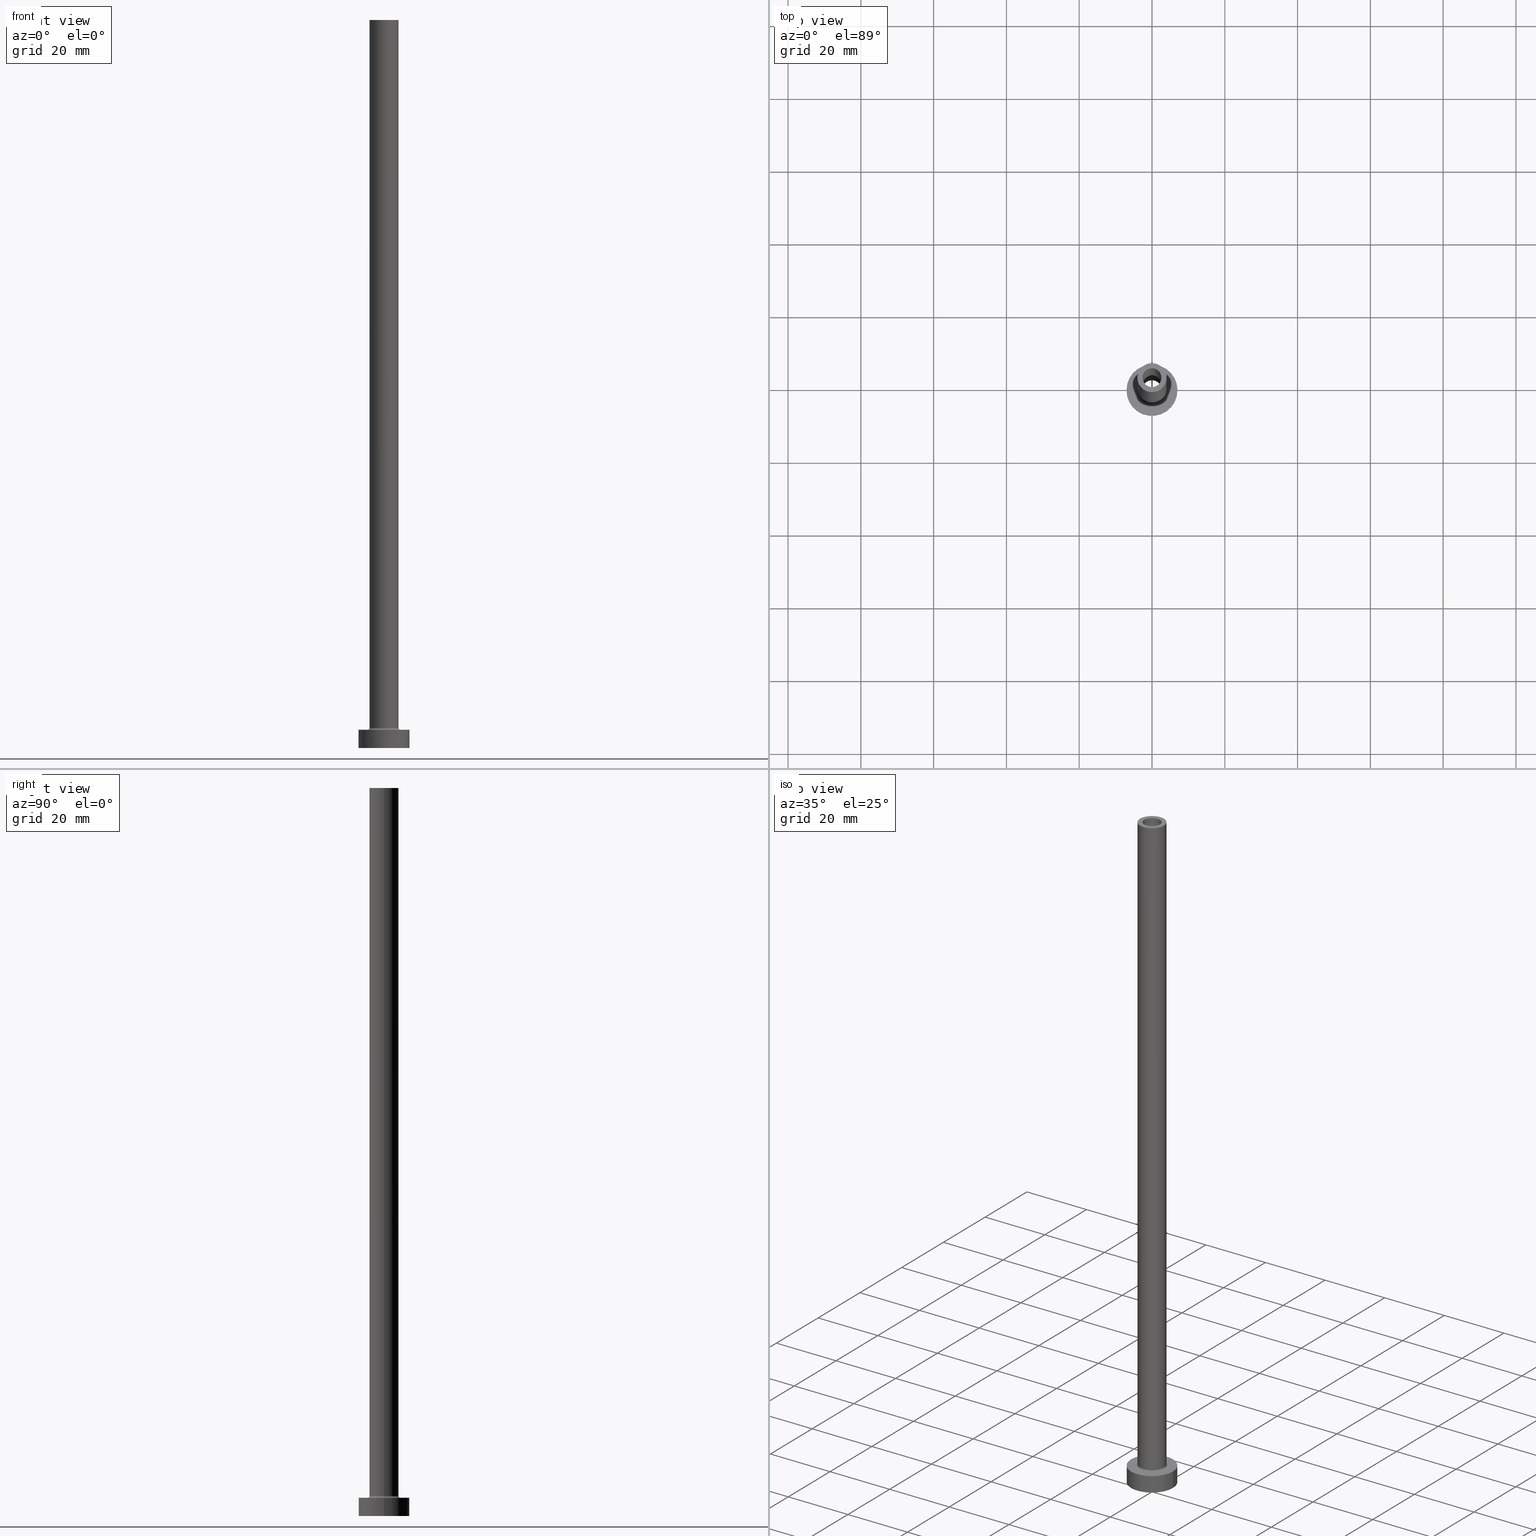
[diagram: canonical four-view strip — front | top / right | iso, engineering-drawing reading convention]
A machine part, canonical four-view strip (front | top / right | iso — engineering-drawing reading convention). The complete STEP part file that produces these views, byte-faithful:
ISO-10303-21;
HEADER;
FILE_DESCRIPTION (( 'STEP AP203' ),
    '1' );
FILE_NAME ('46c4.STEP',
    '2023-02-13T10:11:08',
    ( '' ),
    ( '' ),
    'SwSTEP 2.0',
    'SolidWorks 2019',
    '' );
FILE_SCHEMA (( 'CONFIG_CONTROL_DESIGN' ));
ENDSEC;

DATA;
#1 = DIRECTION ( 'NONE',  ( 1.000000000000000000, 0.000000000000000000, 0.000000000000000000 ) ) ;
#2 = CARTESIAN_POINT ( 'NONE',  ( -2.600000000000000089, 0.000000000000000000, 200.0000000000000000 ) ) ;
#3 = ADVANCED_FACE ( 'NONE', ( #13 ), #301, .T. ) ;
#4 = CARTESIAN_POINT ( 'NONE',  ( -4.500000000000000888, 5.510910596163088569E-16, 5.000000000000002665 ) ) ;
#5 = DIRECTION ( 'NONE',  ( 1.000000000000000000, 0.000000000000000000, 0.000000000000000000 ) ) ;
#6 = ORIENTED_EDGE ( 'NONE', *, *, #277, .F. ) ;
#7 = DIRECTION ( 'NONE',  ( -1.000000000000000000, 0.000000000000000000, 0.000000000000000000 ) ) ;
#8 = AXIS2_PLACEMENT_3D ( 'NONE', #118, #400, #216 ) ;
#9 = DIRECTION ( 'NONE',  ( -0.000000000000000000, -0.000000000000000000, -1.000000000000000000 ) ) ;
#10 = ORIENTED_EDGE ( 'NONE', *, *, #273, .F. ) ;
#11 = DATE_AND_TIME ( #384, #344 ) ;
#12 = DIRECTION ( 'NONE',  ( 1.224646799147353207E-16, 1.000000000000000000, -0.000000000000000000 ) ) ;
#13 = FACE_OUTER_BOUND ( 'NONE', #336, .T. ) ;
#14 = EDGE_CURVE ( 'NONE', #433, #186, #169, .T. ) ;
#15 = COORDINATED_UNIVERSAL_TIME_OFFSET ( 1, 0, .AHEAD. ) ;
#16 = APPLICATION_CONTEXT ( 'configuration controlled 3d designs of mechanical parts and assemblies' ) ;
#17 = CIRCLE ( 'NONE', #269, 4.000000000000000000 ) ;
#18 = CIRCLE ( 'NONE', #214, 4.500000000000000888 ) ;
#19 = VERTEX_POINT ( 'NONE', #198 ) ;
#20 = CIRCLE ( 'NONE', #280, 2.750000000000000000 ) ;
#21 = PERSON_AND_ORGANIZATION_ROLE ( 'creator' ) ;
#22 = ORIENTED_EDGE ( 'NONE', *, *, #225, .F. ) ;
#23 = SHAPE_DEFINITION_REPRESENTATION ( #105, #161 ) ;
#24 = FACE_OUTER_BOUND ( 'NONE', #123, .T. ) ;
#25 = CARTESIAN_POINT ( 'NONE',  ( 0.000000000000000000, 0.000000000000000000, 200.0000000000000000 ) ) ;
#26 = DIRECTION ( 'NONE',  ( 0.000000000000000000, 0.000000000000000000, 1.000000000000000000 ) ) ;
#27 = EDGE_LOOP ( 'NONE', ( #74, #63, #454, #386 ) ) ;
#28 = AXIS2_PLACEMENT_3D ( 'NONE', #405, #83, #374 ) ;
#29 = DIRECTION ( 'NONE',  ( 0.000000000000000000, 0.000000000000000000, 1.000000000000000000 ) ) ;
#30 =( LENGTH_UNIT ( ) NAMED_UNIT ( * ) SI_UNIT ( .MILLI., .METRE. ) );
#31 = FACE_OUTER_BOUND ( 'NONE', #213, .T. ) ;
#32 = EDGE_CURVE ( 'NONE', #186, #262, #417, .T. ) ;
#33 = DIRECTION ( 'NONE',  ( 0.000000000000000000, 0.000000000000000000, -1.000000000000000000 ) ) ;
#34 = AXIS2_PLACEMENT_3D ( 'NONE', #390, #278, #166 ) ;
#35 =( GEOMETRIC_REPRESENTATION_CONTEXT ( 3 ) GLOBAL_UNCERTAINTY_ASSIGNED_CONTEXT ( ( #136 ) ) GLOBAL_UNIT_ASSIGNED_CONTEXT ( ( #30, #102, #134 ) ) REPRESENTATION_CONTEXT ( 'NONE', 'WORKASPACE' ) );
#36 = CARTESIAN_POINT ( 'NONE',  ( 7.000000000000000000, 8.572527594031473190E-16, 5.000000000000000000 ) ) ;
#37 = ADVANCED_FACE ( 'NONE', ( #94 ), #289, .F. ) ;
#38 = CARTESIAN_POINT ( 'NONE',  ( 2.750000000000000000, 3.367778697655221012E-16, 155.0000000000000284 ) ) ;
#39 = DIRECTION ( 'NONE',  ( -0.000000000000000000, -0.000000000000000000, -1.000000000000000000 ) ) ;
#40 = ORIENTED_EDGE ( 'NONE', *, *, #259, .T. ) ;
#41 = AXIS2_PLACEMENT_3D ( 'NONE', #188, #263, #155 ) ;
#42 = CARTESIAN_POINT ( 'NONE',  ( 0.000000000000000000, 0.000000000000000000, 5.000000000000000000 ) ) ;
#43 = CARTESIAN_POINT ( 'NONE',  ( 0.000000000000000000, 0.000000000000000000, 5.500000000000005329 ) ) ;
#44 = ORIENTED_EDGE ( 'NONE', *, *, #174, .F. ) ;
#45 = EDGE_CURVE ( 'NONE', #211, #91, #352, .T. ) ;
#46 = LINE ( 'NONE', #148, #283 ) ;
#47 = AXIS2_PLACEMENT_3D ( 'NONE', #71, #205, #1 ) ;
#48 = CARTESIAN_POINT ( 'NONE',  ( 0.000000000000000000, 0.000000000000000000, 200.0000000000000000 ) ) ;
#49 = VERTEX_POINT ( 'NONE', #247 ) ;
#50 = PERSON_AND_ORGANIZATION ( #244, #78 ) ;
#51 = CC_DESIGN_PERSON_AND_ORGANIZATION_ASSIGNMENT ( #294, #159, ( #389 ) ) ;
#52 = CARTESIAN_POINT ( 'NONE',  ( -7.000000000000000000, 0.000000000000000000, 0.000000000000000000 ) ) ;
#53 = ORIENTED_EDGE ( 'NONE', *, *, #178, .T. ) ;
#54 = APPROVAL_STATUS ( 'not_yet_approved' ) ;
#55 = AXIS2_PLACEMENT_3D ( 'NONE', #181, #335, #438 ) ;
#56 = DIRECTION ( 'NONE',  ( 0.000000000000000000, 0.000000000000000000, 1.000000000000000000 ) ) ;
#57 = PRODUCT_RELATED_PRODUCT_CATEGORY ( 'detail', '', ( #243 ) ) ;
#58 = COORDINATED_UNIVERSAL_TIME_OFFSET ( 1, 0, .AHEAD. ) ;
#59 = DIRECTION ( 'NONE',  ( -0.000000000000000000, -0.000000000000000000, -1.000000000000000000 ) ) ;
#60 = VECTOR ( 'NONE', #59, 1000.000000000000000 ) ;
#61 = ORIENTED_EDGE ( 'NONE', *, *, #382, .T. ) ;
#62 = PERSON_AND_ORGANIZATION ( #244, #78 ) ;
#63 = ORIENTED_EDGE ( 'NONE', *, *, #174, .T. ) ;
#64 = ADVANCED_FACE ( 'NONE', ( #393 ), #327, .F. ) ;
#65 = DIRECTION ( 'NONE',  ( 0.000000000000000000, 0.000000000000000000, 1.000000000000000000 ) ) ;
#66 = DIRECTION ( 'NONE',  ( 1.000000000000000000, 0.000000000000000000, 0.000000000000000000 ) ) ;
#67 = DIRECTION ( 'NONE',  ( 0.000000000000000000, 0.000000000000000000, 1.000000000000000000 ) ) ;
#68 = DIRECTION ( 'NONE',  ( 0.000000000000000000, 0.000000000000000000, 1.000000000000000000 ) ) ;
#69 = CIRCLE ( 'NONE', #356, 2.600000000000000089 ) ;
#70 = ADVANCED_FACE ( 'NONE', ( #31 ), #282, .F. ) ;
#71 = CARTESIAN_POINT ( 'NONE',  ( 0.000000000000000000, 0.000000000000000000, 0.000000000000000000 ) ) ;
#72 = AXIS2_PLACEMENT_3D ( 'NONE', #359, #168, #208 ) ;
#73 = ADVANCED_FACE ( 'NONE', ( #324 ), #138, .F. ) ;
#74 = ORIENTED_EDGE ( 'NONE', *, *, #317, .T. ) ;
#75 = DIRECTION ( 'NONE',  ( 0.000000000000000000, 0.000000000000000000, 1.000000000000000000 ) ) ;
#76 = EDGE_LOOP ( 'NONE', ( #456, #341 ) ) ;
#77 = CC_DESIGN_APPROVAL ( #314, ( #284 ) ) ;
#78 = ORGANIZATION ( 'NEUR�EN�', 'NEUR�EN�', '' ) ;
#79 = CARTESIAN_POINT ( 'NONE',  ( -2.750000000000000000, 0.000000000000000000, 155.0000000000000284 ) ) ;
#80 = ORIENTED_EDGE ( 'NONE', *, *, #358, .T. ) ;
#81 = CARTESIAN_POINT ( 'NONE',  ( 0.000000000000000000, 0.000000000000000000, 200.0000000000000000 ) ) ;
#82 = VERTEX_POINT ( 'NONE', #36 ) ;
#83 = DIRECTION ( 'NONE',  ( 0.000000000000000000, 0.000000000000000000, 1.000000000000000000 ) ) ;
#84 = EDGE_CURVE ( 'NONE', #375, #49, #427, .T. ) ;
#85 = APPROVAL_ROLE ( '' ) ;
#86 = PLANE ( 'NONE',  #246 ) ;
#87 = PERSON_AND_ORGANIZATION ( #244, #78 ) ;
#88 = DIRECTION ( 'NONE',  ( 1.000000000000000000, 0.000000000000000000, 0.000000000000000000 ) ) ;
#89 = ORIENTED_EDGE ( 'NONE', *, *, #424, .F. ) ;
#90 = AXIS2_PLACEMENT_3D ( 'NONE', #140, #33, #241 ) ;
#91 = VERTEX_POINT ( 'NONE', #151 ) ;
#92 = COORDINATED_UNIVERSAL_TIME_OFFSET ( 1, 0, .AHEAD. ) ;
#93 = DIRECTION ( 'NONE',  ( 0.000000000000000000, 0.000000000000000000, 1.000000000000000000 ) ) ;
#94 = FACE_OUTER_BOUND ( 'NONE', #110, .T. ) ;
#95 = CALENDAR_DATE ( 2023, 13, 2 ) ;
#96 = ORIENTED_EDGE ( 'NONE', *, *, #178, .F. ) ;
#97 = CC_DESIGN_DATE_AND_TIME_ASSIGNMENT ( #11, #154, ( #231 ) ) ;
#98 = DESIGN_CONTEXT ( 'detailed design', #16, 'design' ) ;
#99 = VERTEX_POINT ( 'NONE', #177 ) ;
#100 = CC_DESIGN_PERSON_AND_ORGANIZATION_ASSIGNMENT ( #421, #442, ( #243 ) ) ;
#101 = LOCAL_TIME ( 11, 11, 8.000000000000000000, #265 ) ;
#102 =( NAMED_UNIT ( * ) PLANE_ANGLE_UNIT ( ) SI_UNIT ( $, .RADIAN. ) );
#103 = DIRECTION ( 'NONE',  ( 0.000000000000000000, 0.000000000000000000, -1.000000000000000000 ) ) ;
#104 = CARTESIAN_POINT ( 'NONE',  ( 0.000000000000000000, 0.000000000000000000, 0.000000000000000000 ) ) ;
#105 = PRODUCT_DEFINITION_SHAPE ( 'NONE', 'NONE',  #389 ) ;
#106 = EDGE_CURVE ( 'NONE', #49, #375, #190, .T. ) ;
#107 = EDGE_LOOP ( 'NONE', ( #44, #267, #141, #334 ) ) ;
#108 = EDGE_CURVE ( 'NONE', #272, #375, #46, .T. ) ;
#109 = DIRECTION ( 'NONE',  ( -0.000000000000000000, -0.000000000000000000, -1.000000000000000000 ) ) ;
#110 = EDGE_LOOP ( 'NONE', ( #434, #404, #290, #96 ) ) ;
#111 = AXIS2_PLACEMENT_3D ( 'NONE', #266, #419, #422 ) ;
#112 = LINE ( 'NONE', #370, #184 ) ;
#113 = FACE_OUTER_BOUND ( 'NONE', #131, .T. ) ;
#114 = VERTEX_POINT ( 'NONE', #292 ) ;
#115 = EDGE_CURVE ( 'NONE', #91, #211, #446, .T. ) ;
#116 = VECTOR ( 'NONE', #311, 1000.000000000000000 ) ;
#117 = DATE_TIME_ROLE ( 'creation_date' ) ;
#118 = CARTESIAN_POINT ( 'NONE',  ( 4.500000000000000888, 0.000000000000000000, 5.500000000000005329 ) ) ;
#119 = ORIENTED_EDGE ( 'NONE', *, *, #139, .F. ) ;
#120 = PERSON_AND_ORGANIZATION_ROLE ( 'classification_officer' ) ;
#121 = AXIS2_PLACEMENT_3D ( 'NONE', #261, #26, #351 ) ;
#122 = FACE_OUTER_BOUND ( 'NONE', #439, .T. ) ;
#123 = EDGE_LOOP ( 'NONE', ( #285, #147 ) ) ;
#124 = CARTESIAN_POINT ( 'NONE',  ( 0.000000000000000000, 0.000000000000000000, 162.7781745930520572 ) ) ;
#125 = EDGE_LOOP ( 'NONE', ( #381, #296, #379, #22 ) ) ;
#126 = CALENDAR_DATE ( 2023, 13, 2 ) ;
#127 = PLANE ( 'NONE',  #111 ) ;
#128 = VERTEX_POINT ( 'NONE', #4 ) ;
#129 = FACE_BOUND ( 'NONE', #76, .T. ) ;
#130 = AXIS2_PLACEMENT_3D ( 'NONE', #428, #29, #357 ) ;
#131 = EDGE_LOOP ( 'NONE', ( #217, #415 ) ) ;
#132 = DIRECTION ( 'NONE',  ( 0.000000000000000000, 0.000000000000000000, -1.000000000000000000 ) ) ;
#133 = ORIENTED_EDGE ( 'NONE', *, *, #106, .T. ) ;
#134 =( NAMED_UNIT ( * ) SI_UNIT ( $, .STERADIAN. ) SOLID_ANGLE_UNIT ( ) );
#135 = VECTOR ( 'NONE', #109, 1000.000000000000000 ) ;
#136 = UNCERTAINTY_MEASURE_WITH_UNIT (LENGTH_MEASURE( 1.000000000000000082E-05 ), #30, 'distance_accuracy_value', 'NONE');
#137 = DIRECTION ( 'NONE',  ( 1.000000000000000000, 0.000000000000000000, 0.000000000000000000 ) ) ;
#138 = CYLINDRICAL_SURFACE ( 'NONE', #249, 2.750000000000000000 ) ;
#139 = EDGE_CURVE ( 'NONE', #195, #49, #286, .T. ) ;
#140 = CARTESIAN_POINT ( 'NONE',  ( 0.000000000000000000, 0.000000000000000000, 200.0000000000000000 ) ) ;
#141 = ORIENTED_EDGE ( 'NONE', *, *, #32, .T. ) ;
#142 = AXIS2_PLACEMENT_3D ( 'NONE', #257, #331, #5 ) ;
#143 = APPROVAL_PERSON_ORGANIZATION ( #62, #167, #299 ) ;
#144 = ORIENTED_EDGE ( 'NONE', *, *, #45, .F. ) ;
#145 = EDGE_CURVE ( 'NONE', #375, #412, #173, .T. ) ;
#146 = FACE_OUTER_BOUND ( 'NONE', #165, .T. ) ;
#147 = ORIENTED_EDGE ( 'NONE', *, *, #14, .F. ) ;
#148 = CARTESIAN_POINT ( 'NONE',  ( 4.000000000000000000, 4.898587196589412829E-16, 200.0000000000000000 ) ) ;
#149 = AXIS2_PLACEMENT_3D ( 'NONE', #48, #366, #338 ) ;
#150 = APPROVAL_ROLE ( '' ) ;
#151 = CARTESIAN_POINT ( 'NONE',  ( 2.600000000000000089, 3.184081677783117698E-16, 200.0000000000000000 ) ) ;
#152 = ADVANCED_FACE ( 'NONE', ( #403 ), #250, .T. ) ;
#153 = ORIENTED_EDGE ( 'NONE', *, *, #84, .T. ) ;
#154 = DATE_TIME_ROLE ( 'classification_date' ) ;
#155 = DIRECTION ( 'NONE',  ( 1.000000000000000000, 0.000000000000000000, 0.000000000000000000 ) ) ;
#156 = DIRECTION ( 'NONE',  ( 1.000000000000000000, 0.000000000000000000, 0.000000000000000000 ) ) ;
#157 = PERSON_AND_ORGANIZATION ( #244, #78 ) ;
#158 = ORIENTED_EDGE ( 'NONE', *, *, #45, .T. ) ;
#159 = PERSON_AND_ORGANIZATION_ROLE ( 'creator' ) ;
#160 = FACE_OUTER_BOUND ( 'NONE', #227, .T. ) ;
#161 = ADVANCED_BREP_SHAPE_REPRESENTATION ( '46c4', ( #298, #215 ), #35 ) ;
#162 = ORIENTED_EDGE ( 'NONE', *, *, #291, .T. ) ;
#163 = DIRECTION ( 'NONE',  ( 1.000000000000000000, 0.000000000000000000, 0.000000000000000000 ) ) ;
#164 = CARTESIAN_POINT ( 'NONE',  ( 0.000000000000000000, 0.000000000000000000, 155.0000000000000284 ) ) ;
#165 = EDGE_LOOP ( 'NONE', ( #264, #189, #153, #119 ) ) ;
#166 = DIRECTION ( 'NONE',  ( 1.000000000000000000, 0.000000000000000000, 0.000000000000000000 ) ) ;
#167 = APPROVAL ( #342, 'NEUR�EN�' ) ;
#168 = DIRECTION ( 'NONE',  ( -0.000000000000000000, -0.000000000000000000, -1.000000000000000000 ) ) ;
#169 = CIRCLE ( 'NONE', #398, 2.750000000000000000 ) ;
#170 = DIRECTION ( 'NONE',  ( 0.000000000000000000, 0.000000000000000000, -1.000000000000000000 ) ) ;
#171 = CARTESIAN_POINT ( 'NONE',  ( 0.000000000000000000, 0.000000000000000000, 155.0000000000000284 ) ) ;
#172 = CARTESIAN_POINT ( 'NONE',  ( 0.000000000000000000, 0.000000000000000000, 200.0000000000000000 ) ) ;
#173 = CIRCLE ( 'NONE', #8, 0.5000000000000004441 ) ;
#174 = EDGE_CURVE ( 'NONE', #433, #99, #112, .T. ) ;
#175 = AXIS2_PLACEMENT_3D ( 'NONE', #172, #170, #320 ) ;
#176 = ORIENTED_EDGE ( 'NONE', *, *, #115, .F. ) ;
#177 = CARTESIAN_POINT ( 'NONE',  ( 2.750000000000000000, 3.367778697655221012E-16, 0.000000000000000000 ) ) ;
#178 = EDGE_CURVE ( 'NONE', #128, #412, #18, .T. ) ;
#179 = APPROVAL_PERSON_ORGANIZATION ( #157, #297, #150 ) ;
#180 = DIRECTION ( 'NONE',  ( 1.000000000000000000, 0.000000000000000000, 0.000000000000000000 ) ) ;
#181 = CARTESIAN_POINT ( 'NONE',  ( 0.000000000000000000, 0.000000000000000000, 5.500000000000005329 ) ) ;
#182 = EDGE_LOOP ( 'NONE', ( #144, #176 ) ) ;
#183 = FACE_BOUND ( 'NONE', #182, .T. ) ;
#184 = VECTOR ( 'NONE', #367, 1000.000000000000000 ) ;
#185 = CC_DESIGN_APPROVAL ( #297, ( #389 ) ) ;
#186 = VERTEX_POINT ( 'NONE', #79 ) ;
#187 = DIRECTION ( 'NONE',  ( 0.000000000000000000, 0.000000000000000000, 1.000000000000000000 ) ) ;
#188 = CARTESIAN_POINT ( 'NONE',  ( 0.000000000000000000, 0.000000000000000000, 5.500000000000005329 ) ) ;
#189 = ORIENTED_EDGE ( 'NONE', *, *, #108, .T. ) ;
#190 = CIRCLE ( 'NONE', #55, 4.000000000000000000 ) ;
#191 = CARTESIAN_POINT ( 'NONE',  ( -4.500000000000000888, 5.510910596163089556E-16, 5.500000000000005329 ) ) ;
#192 = DIRECTION ( 'NONE',  ( -1.000000000000000000, 0.000000000000000000, 0.000000000000000000 ) ) ;
#193 = DATE_AND_TIME ( #376, #240 ) ;
#194 = CARTESIAN_POINT ( 'NONE',  ( 0.000000000000000000, 0.000000000000000000, 5.000000000000000000 ) ) ;
#195 = VERTEX_POINT ( 'NONE', #252 ) ;
#196 = DATE_AND_TIME ( #95, #323 ) ;
#197 = CARTESIAN_POINT ( 'NONE',  ( 2.600000000000000089, 3.184081677783117698E-16, 155.0000000000000284 ) ) ;
#198 = CARTESIAN_POINT ( 'NONE',  ( -2.600000000000000089, 0.000000000000000000, 155.0000000000000284 ) ) ;
#199 = CARTESIAN_POINT ( 'NONE',  ( 0.000000000000000000, 0.000000000000000000, 200.0000000000000000 ) ) ;
#200 = ORIENTED_EDGE ( 'NONE', *, *, #332, .F. ) ;
#201 = DIRECTION ( 'NONE',  ( -0.000000000000000000, -0.000000000000000000, -1.000000000000000000 ) ) ;
#202 = CIRCLE ( 'NONE', #329, 0.5000000000000004441 ) ;
#203 = ORIENTED_EDGE ( 'NONE', *, *, #358, .F. ) ;
#204 = APPLICATION_PROTOCOL_DEFINITION ( 'international standard', 'config_control_design', 1994, #416 ) ;
#205 = DIRECTION ( 'NONE',  ( -0.000000000000000000, -0.000000000000000000, -1.000000000000000000 ) ) ;
#206 = CARTESIAN_POINT ( 'NONE',  ( 4.000000000000000000, 4.898587196589412829E-16, 5.500000000000005329 ) ) ;
#207 = CIRCLE ( 'NONE', #47, 2.750000000000000000 ) ;
#208 = DIRECTION ( 'NONE',  ( -1.000000000000000000, 0.000000000000000000, 0.000000000000000000 ) ) ;
#209 = DIRECTION ( 'NONE',  ( 1.000000000000000000, 0.000000000000000000, 0.000000000000000000 ) ) ;
#210 = LINE ( 'NONE', #328, #411 ) ;
#211 = VERTEX_POINT ( 'NONE', #220 ) ;
#212 = CARTESIAN_POINT ( 'NONE',  ( 0.000000000000000000, 0.000000000000000000, 5.000000000000000000 ) ) ;
#213 = EDGE_LOOP ( 'NONE', ( #158, #315, #397, #235 ) ) ;
#214 = AXIS2_PLACEMENT_3D ( 'NONE', #42, #39, #180 ) ;
#215 = AXIS2_PLACEMENT_3D ( 'NONE', #268, #187, #221 ) ;
#216 = DIRECTION ( 'NONE',  ( 0.000000000000000000, 0.000000000000000000, -1.000000000000000000 ) ) ;
#217 = ORIENTED_EDGE ( 'NONE', *, *, #332, .T. ) ;
#218 = DIRECTION ( 'NONE',  ( 1.000000000000000000, 0.000000000000000000, 0.000000000000000000 ) ) ;
#219 = ORIENTED_EDGE ( 'NONE', *, *, #424, .T. ) ;
#220 = CARTESIAN_POINT ( 'NONE',  ( -2.600000000000000089, 0.000000000000000000, 200.0000000000000000 ) ) ;
#221 = DIRECTION ( 'NONE',  ( 1.000000000000000000, 0.000000000000000000, 0.000000000000000000 ) ) ;
#222 = LINE ( 'NONE', #228, #368 ) ;
#223 = ORIENTED_EDGE ( 'NONE', *, *, #259, .F. ) ;
#224 = MECHANICAL_CONTEXT ( 'NONE', #416, 'mechanical' ) ;
#225 = EDGE_CURVE ( 'NONE', #275, #19, #312, .T. ) ;
#226 = FACE_OUTER_BOUND ( 'NONE', #27, .T. ) ;
#227 = EDGE_LOOP ( 'NONE', ( #80, #307 ) ) ;
#228 = CARTESIAN_POINT ( 'NONE',  ( 2.600000000000000089, 3.184081677783117698E-16, 200.0000000000000000 ) ) ;
#229 = CARTESIAN_POINT ( 'NONE',  ( -2.750000000000000000, 0.000000000000000000, 162.7781745930520572 ) ) ;
#230 = CIRCLE ( 'NONE', #34, 4.500000000000000888 ) ;
#231 = SECURITY_CLASSIFICATION ( '', '', #308 ) ;
#232 = CARTESIAN_POINT ( 'NONE',  ( 0.000000000000000000, 0.000000000000000000, 0.000000000000000000 ) ) ;
#233 = ORIENTED_EDGE ( 'NONE', *, *, #273, .T. ) ;
#234 = DIRECTION ( 'NONE',  ( -0.000000000000000000, -0.000000000000000000, -1.000000000000000000 ) ) ;
#235 = ORIENTED_EDGE ( 'NONE', *, *, #408, .F. ) ;
#236 = ADVANCED_FACE ( 'NONE', ( #146 ), #410, .T. ) ;
#237 = CYLINDRICAL_SURFACE ( 'NONE', #72, 4.000000000000000000 ) ;
#238 = DIRECTION ( 'NONE',  ( -0.000000000000000000, -0.000000000000000000, -1.000000000000000000 ) ) ;
#239 = CIRCLE ( 'NONE', #302, 7.000000000000000000 ) ;
#240 = LOCAL_TIME ( 11, 11, 8.000000000000000000, #58 ) ;
#241 = DIRECTION ( 'NONE',  ( -1.000000000000000000, 0.000000000000000000, 0.000000000000000000 ) ) ;
#242 = ADVANCED_FACE ( 'NONE', ( #183, #113 ), #254, .T. ) ;
#243 = PRODUCT ( '46c4', '46c4', '', ( #224 ) ) ;
#244 = PERSON ( 'NEUR�EN�', 'NEUR�EN�', 'NEUR�EN�', ('NEUR�EN�'), ('NEUR�EN�'), ('NEUR�EN�') ) ;
#245 = DIRECTION ( 'NONE',  ( 0.000000000000000000, 0.000000000000000000, 1.000000000000000000 ) ) ;
#246 = AXIS2_PLACEMENT_3D ( 'NONE', #232, #93, #274 ) ;
#247 = CARTESIAN_POINT ( 'NONE',  ( -4.000000000000000000, 0.000000000000000000, 5.500000000000005329 ) ) ;
#248 = ORIENTED_EDGE ( 'NONE', *, *, #108, .F. ) ;
#249 = AXIS2_PLACEMENT_3D ( 'NONE', #281, #103, #363 ) ;
#250 = CYLINDRICAL_SURFACE ( 'NONE', #258, 7.000000000000000000 ) ;
#251 = EDGE_LOOP ( 'NONE', ( #248, #200, #287, #133 ) ) ;
#252 = CARTESIAN_POINT ( 'NONE',  ( -4.000000000000000000, 0.000000000000000000, 200.0000000000000000 ) ) ;
#253 = EDGE_CURVE ( 'NONE', #272, #195, #279, .T. ) ;
#254 = PLANE ( 'NONE',  #28 ) ;
#255 = CLOSED_SHELL ( 'NONE', ( #70, #337, #309, #236, #3, #152, #369, #349, #394, #242, #37, #73, #326, #64 ) ) ;
#256 = CALENDAR_DATE ( 2023, 13, 2 ) ;
#257 = CARTESIAN_POINT ( 'NONE',  ( 0.000000000000000000, 0.000000000000000000, 155.0000000000000284 ) ) ;
#258 = AXIS2_PLACEMENT_3D ( 'NONE', #212, #9, #7 ) ;
#259 = EDGE_CURVE ( 'NONE', #82, #402, #210, .T. ) ;
#260 = APPROVAL_STATUS ( 'not_yet_approved' ) ;
#261 = CARTESIAN_POINT ( 'NONE',  ( 0.000000000000000000, 0.000000000000000000, 155.0000000000000284 ) ) ;
#262 = VERTEX_POINT ( 'NONE', #300 ) ;
#263 = DIRECTION ( 'NONE',  ( 0.000000000000000000, 0.000000000000000000, 1.000000000000000000 ) ) ;
#264 = ORIENTED_EDGE ( 'NONE', *, *, #253, .F. ) ;
#265 = COORDINATED_UNIVERSAL_TIME_OFFSET ( 1, 0, .AHEAD. ) ;
#266 = CARTESIAN_POINT ( 'NONE',  ( 0.000000000000000000, 0.000000000000000000, 5.000000000000000000 ) ) ;
#267 = ORIENTED_EDGE ( 'NONE', *, *, #14, .T. ) ;
#269 = AXIS2_PLACEMENT_3D ( 'NONE', #199, #414, #163 ) ;
#268 = CARTESIAN_POINT ( 'NONE',  ( 0.000000000000000000, 0.000000000000000000, 0.000000000000000000 ) ) ;
#270 = AXIS2_PLACEMENT_3D ( 'NONE', #104, #245, #395 ) ;
#271 = DIRECTION ( 'NONE',  ( 1.000000000000000000, 0.000000000000000000, -0.000000000000000000 ) ) ;
#272 = VERTEX_POINT ( 'NONE', #387 ) ;
#273 = EDGE_CURVE ( 'NONE', #114, #371, #304, .T. ) ;
#274 = DIRECTION ( 'NONE',  ( 1.000000000000000000, 0.000000000000000000, -0.000000000000000000 ) ) ;
#275 = VERTEX_POINT ( 'NONE', #197 ) ;
#276 = ORIENTED_EDGE ( 'NONE', *, *, #441, .F. ) ;
#277 = EDGE_CURVE ( 'NONE', #82, #114, #392, .T. ) ;
#278 = DIRECTION ( 'NONE',  ( -0.000000000000000000, -0.000000000000000000, -1.000000000000000000 ) ) ;
#279 = CIRCLE ( 'NONE', #149, 4.000000000000000000 ) ;
#280 = AXIS2_PLACEMENT_3D ( 'NONE', #316, #201, #137 ) ;
#281 = CARTESIAN_POINT ( 'NONE',  ( 0.000000000000000000, 0.000000000000000000, 162.7781745930520572 ) ) ;
#282 = CYLINDRICAL_SURFACE ( 'NONE', #175, 2.600000000000000089 ) ;
#283 = VECTOR ( 'NONE', #333, 1000.000000000000000 ) ;
#284 = PRODUCT_DEFINITION_FORMATION_WITH_SPECIFIED_SOURCE ( 'LIBOVOLN�', '', #243, .NOT_KNOWN. ) ;
#285 = ORIENTED_EDGE ( 'NONE', *, *, #317, .F. ) ;
#286 = LINE ( 'NONE', #443, #135 ) ;
#287 = ORIENTED_EDGE ( 'NONE', *, *, #139, .T. ) ;
#288 = DIRECTION ( 'NONE',  ( -0.000000000000000000, -0.000000000000000000, -1.000000000000000000 ) ) ;
#289 = TOROIDAL_SURFACE ( 'NONE', #365, 4.500000000000000888, 0.5000000000000000000 ) ;
#290 = ORIENTED_EDGE ( 'NONE', *, *, #145, .T. ) ;
#291 = EDGE_CURVE ( 'NONE', #49, #128, #202, .T. ) ;
#292 = CARTESIAN_POINT ( 'NONE',  ( -7.000000000000000000, 0.000000000000000000, 5.000000000000000000 ) ) ;
#293 = ORIENTED_EDGE ( 'NONE', *, *, #382, .F. ) ;
#294 = PERSON_AND_ORGANIZATION ( #244, #78 ) ;
#295 = CARTESIAN_POINT ( 'NONE',  ( 0.000000000000000000, 0.000000000000000000, 200.0000000000000000 ) ) ;
#296 = ORIENTED_EDGE ( 'NONE', *, *, #115, .T. ) ;
#297 = APPROVAL ( #54, 'NEUR�EN�' ) ;
#298 = MANIFOLD_SOLID_BREP ( 'Odebrat vysunut�m4', #255 ) ;
#299 = APPROVAL_ROLE ( '' ) ;
#300 = CARTESIAN_POINT ( 'NONE',  ( -2.750000000000000000, 0.000000000000000000, 0.000000000000000000 ) ) ;
#301 = CYLINDRICAL_SURFACE ( 'NONE', #318, 7.000000000000000000 ) ;
#302 = AXIS2_PLACEMENT_3D ( 'NONE', #455, #56, #88 ) ;
#303 = CIRCLE ( 'NONE', #130, 7.000000000000000000 ) ;
#304 = LINE ( 'NONE', #445, #60 ) ;
#305 = EDGE_LOOP ( 'NONE', ( #407, #451 ) ) ;
#306 = APPLICATION_PROTOCOL_DEFINITION ( 'international standard', 'config_control_design', 1994, #16 ) ;
#307 = ORIENTED_EDGE ( 'NONE', *, *, #277, .T. ) ;
#308 = SECURITY_CLASSIFICATION_LEVEL ( 'unclassified' ) ;
#309 = ADVANCED_FACE ( 'NONE', ( #122 ), #321, .F. ) ;
#310 = CYLINDRICAL_SURFACE ( 'NONE', #383, 2.750000000000000000 ) ;
#311 = DIRECTION ( 'NONE',  ( 0.000000000000000000, 0.000000000000000000, -1.000000000000000000 ) ) ;
#312 = CIRCLE ( 'NONE', #142, 2.600000000000000089 ) ;
#313 = FACE_BOUND ( 'NONE', #305, .T. ) ;
#314 = APPROVAL ( #260, 'NEUR�EN�' ) ;
#315 = ORIENTED_EDGE ( 'NONE', *, *, #364, .T. ) ;
#316 = CARTESIAN_POINT ( 'NONE',  ( 0.000000000000000000, 0.000000000000000000, 0.000000000000000000 ) ) ;
#317 = EDGE_CURVE ( 'NONE', #186, #433, #437, .T. ) ;
#318 = AXIS2_PLACEMENT_3D ( 'NONE', #447, #238, #192 ) ;
#319 = FACE_OUTER_BOUND ( 'NONE', #251, .T. ) ;
#320 = DIRECTION ( 'NONE',  ( -1.000000000000000000, 0.000000000000000000, 0.000000000000000000 ) ) ;
#321 = TOROIDAL_SURFACE ( 'NONE', #41, 4.500000000000000888, 0.5000000000000000000 ) ;
#322 = DIRECTION ( 'NONE',  ( 1.000000000000000000, 0.000000000000000000, 0.000000000000000000 ) ) ;
#323 = LOCAL_TIME ( 11, 11, 8.000000000000000000, #15 ) ;
#324 = FACE_OUTER_BOUND ( 'NONE', #107, .T. ) ;
#325 = LINE ( 'NONE', #2, #448 ) ;
#326 = ADVANCED_FACE ( 'NONE', ( #129, #24 ), #450, .F. ) ;
#327 = CYLINDRICAL_SURFACE ( 'NONE', #90, 2.600000000000000089 ) ;
#328 = CARTESIAN_POINT ( 'NONE',  ( 7.000000000000000000, 8.572527594031473190E-16, 5.000000000000000000 ) ) ;
#329 = AXIS2_PLACEMENT_3D ( 'NONE', #191, #12, #343 ) ;
#330 = LOCAL_TIME ( 11, 11, 8.000000000000000000, #413 ) ;
#331 = DIRECTION ( 'NONE',  ( 0.000000000000000000, 0.000000000000000000, 1.000000000000000000 ) ) ;
#332 = EDGE_CURVE ( 'NONE', #195, #272, #17, .T. ) ;
#333 = DIRECTION ( 'NONE',  ( -0.000000000000000000, -0.000000000000000000, -1.000000000000000000 ) ) ;
#334 = ORIENTED_EDGE ( 'NONE', *, *, #449, .T. ) ;
#335 = DIRECTION ( 'NONE',  ( 0.000000000000000000, 0.000000000000000000, 1.000000000000000000 ) ) ;
#336 = EDGE_LOOP ( 'NONE', ( #6, #40, #219, #10 ) ) ;
#337 = ADVANCED_FACE ( 'NONE', ( #226 ), #310, .F. ) ;
#338 = DIRECTION ( 'NONE',  ( 1.000000000000000000, 0.000000000000000000, 0.000000000000000000 ) ) ;
#339 = PERSON_AND_ORGANIZATION_ROLE ( 'design_supplier' ) ;
#340 = CC_DESIGN_PERSON_AND_ORGANIZATION_ASSIGNMENT ( #418, #339, ( #284 ) ) ;
#341 = ORIENTED_EDGE ( 'NONE', *, *, #225, .T. ) ;
#342 = APPROVAL_STATUS ( 'not_yet_approved' ) ;
#343 = DIRECTION ( 'NONE',  ( -1.000000000000000000, 1.224646799147351482E-16, 0.000000000000000000 ) ) ;
#344 = LOCAL_TIME ( 11, 11, 8.000000000000000000, #92 ) ;
#345 = APPROVAL_PERSON_ORGANIZATION ( #346, #314, #85 ) ;
#346 = PERSON_AND_ORGANIZATION ( #244, #78 ) ;
#347 = FACE_BOUND ( 'NONE', #459, .T. ) ;
#348 = ORIENTED_EDGE ( 'NONE', *, *, #145, .F. ) ;
#349 = ADVANCED_FACE ( 'NONE', ( #313, #380 ), #86, .F. ) ;
#350 = APPROVAL_DATE_TIME ( #196, #167 ) ;
#351 = DIRECTION ( 'NONE',  ( 1.000000000000000000, 0.000000000000000000, 0.000000000000000000 ) ) ;
#352 = CIRCLE ( 'NONE', #373, 2.600000000000000089 ) ;
#353 = CC_DESIGN_PERSON_AND_ORGANIZATION_ASSIGNMENT ( #87, #120, ( #231 ) ) ;
#354 = DIRECTION ( 'NONE',  ( 1.000000000000000000, 0.000000000000000000, 0.000000000000000000 ) ) ;
#355 = ORIENTED_EDGE ( 'NONE', *, *, #441, .T. ) ;
#356 = AXIS2_PLACEMENT_3D ( 'NONE', #171, #67, #322 ) ;
#357 = DIRECTION ( 'NONE',  ( 1.000000000000000000, 0.000000000000000000, 0.000000000000000000 ) ) ;
#358 = EDGE_CURVE ( 'NONE', #114, #82, #239, .T. ) ;
#359 = CARTESIAN_POINT ( 'NONE',  ( 0.000000000000000000, 0.000000000000000000, 200.0000000000000000 ) ) ;
#360 = CARTESIAN_POINT ( 'NONE',  ( 7.000000000000000000, 8.572527594031473190E-16, 0.000000000000000000 ) ) ;
#361 = DIRECTION ( 'NONE',  ( 0.000000000000000000, 0.000000000000000000, 1.000000000000000000 ) ) ;
#362 = AXIS2_PLACEMENT_3D ( 'NONE', #81, #288, #435 ) ;
#363 = DIRECTION ( 'NONE',  ( -1.000000000000000000, 0.000000000000000000, 0.000000000000000000 ) ) ;
#364 = EDGE_CURVE ( 'NONE', #91, #275, #222, .T. ) ;
#365 = AXIS2_PLACEMENT_3D ( 'NONE', #423, #388, #66 ) ;
#366 = DIRECTION ( 'NONE',  ( 0.000000000000000000, 0.000000000000000000, 1.000000000000000000 ) ) ;
#367 = DIRECTION ( 'NONE',  ( 0.000000000000000000, 0.000000000000000000, -1.000000000000000000 ) ) ;
#368 = VECTOR ( 'NONE', #377, 1000.000000000000000 ) ;
#369 = ADVANCED_FACE ( 'NONE', ( #347, #160 ), #127, .T. ) ;
#370 = CARTESIAN_POINT ( 'NONE',  ( 2.750000000000000000, 3.367778697655221012E-16, 162.7781745930520572 ) ) ;
#371 = VERTEX_POINT ( 'NONE', #52 ) ;
#372 = DIRECTION ( 'NONE',  ( 1.000000000000000000, 0.000000000000000000, 0.000000000000000000 ) ) ;
#373 = AXIS2_PLACEMENT_3D ( 'NONE', #25, #361, #209 ) ;
#374 = DIRECTION ( 'NONE',  ( 1.000000000000000000, 0.000000000000000000, -0.000000000000000000 ) ) ;
#375 = VERTEX_POINT ( 'NONE', #206 ) ;
#376 = CALENDAR_DATE ( 2023, 13, 2 ) ;
#377 = DIRECTION ( 'NONE',  ( 0.000000000000000000, 0.000000000000000000, -1.000000000000000000 ) ) ;
#378 = DATE_AND_TIME ( #126, #101 ) ;
#379 = ORIENTED_EDGE ( 'NONE', *, *, #408, .T. ) ;
#380 = FACE_OUTER_BOUND ( 'NONE', #436, .T. ) ;
#381 = ORIENTED_EDGE ( 'NONE', *, *, #364, .F. ) ;
#382 = EDGE_CURVE ( 'NONE', #412, #128, #230, .T. ) ;
#383 = AXIS2_PLACEMENT_3D ( 'NONE', #124, #132, #385 ) ;
#384 = CALENDAR_DATE ( 2023, 13, 2 ) ;
#385 = DIRECTION ( 'NONE',  ( -1.000000000000000000, 0.000000000000000000, 0.000000000000000000 ) ) ;
#386 = ORIENTED_EDGE ( 'NONE', *, *, #32, .F. ) ;
#387 = CARTESIAN_POINT ( 'NONE',  ( 4.000000000000000000, 4.898587196589412829E-16, 200.0000000000000000 ) ) ;
#388 = DIRECTION ( 'NONE',  ( 0.000000000000000000, 0.000000000000000000, 1.000000000000000000 ) ) ;
#389 = PRODUCT_DEFINITION ( 'NEZN�M�', '', #284, #98 ) ;
#390 = CARTESIAN_POINT ( 'NONE',  ( 0.000000000000000000, 0.000000000000000000, 5.000000000000000000 ) ) ;
#391 = EDGE_LOOP ( 'NONE', ( #223, #203, #233, #355 ) ) ;
#392 = CIRCLE ( 'NONE', #429, 7.000000000000000000 ) ;
#393 = FACE_OUTER_BOUND ( 'NONE', #125, .T. ) ;
#394 = ADVANCED_FACE ( 'NONE', ( #319 ), #237, .T. ) ;
#395 = DIRECTION ( 'NONE',  ( 1.000000000000000000, 0.000000000000000000, 0.000000000000000000 ) ) ;
#396 = CIRCLE ( 'NONE', #270, 7.000000000000000000 ) ;
#397 = ORIENTED_EDGE ( 'NONE', *, *, #430, .F. ) ;
#398 = AXIS2_PLACEMENT_3D ( 'NONE', #420, #68, #156 ) ;
#399 = EDGE_CURVE ( 'NONE', #99, #262, #207, .T. ) ;
#400 = DIRECTION ( 'NONE',  ( 0.000000000000000000, -1.000000000000000000, 0.000000000000000000 ) ) ;
#401 = CC_DESIGN_APPROVAL ( #167, ( #231 ) ) ;
#402 = VERTEX_POINT ( 'NONE', #360 ) ;
#403 = FACE_OUTER_BOUND ( 'NONE', #391, .T. ) ;
#404 = ORIENTED_EDGE ( 'NONE', *, *, #84, .F. ) ;
#405 = CARTESIAN_POINT ( 'NONE',  ( 0.000000000000000000, 0.000000000000000000, 200.0000000000000000 ) ) ;
#406 = AXIS2_PLACEMENT_3D ( 'NONE', #43, #75, #372 ) ;
#407 = ORIENTED_EDGE ( 'NONE', *, *, #449, .F. ) ;
#408 = EDGE_CURVE ( 'NONE', #211, #19, #325, .T. ) ;
#409 = APPROVAL_DATE_TIME ( #453, #314 ) ;
#410 = CYLINDRICAL_SURFACE ( 'NONE', #362, 4.000000000000000000 ) ;
#411 = VECTOR ( 'NONE', #234, 1000.000000000000000 ) ;
#412 = VERTEX_POINT ( 'NONE', #425 ) ;
#413 = COORDINATED_UNIVERSAL_TIME_OFFSET ( 1, 0, .AHEAD. ) ;
#414 = DIRECTION ( 'NONE',  ( 0.000000000000000000, 0.000000000000000000, 1.000000000000000000 ) ) ;
#415 = ORIENTED_EDGE ( 'NONE', *, *, #253, .T. ) ;
#416 = APPLICATION_CONTEXT ( 'configuration controlled 3d designs of mechanical parts and assemblies' ) ;
#417 = LINE ( 'NONE', #229, #116 ) ;
#418 = PERSON_AND_ORGANIZATION ( #244, #78 ) ;
#419 = DIRECTION ( 'NONE',  ( 0.000000000000000000, 0.000000000000000000, 1.000000000000000000 ) ) ;
#420 = CARTESIAN_POINT ( 'NONE',  ( 0.000000000000000000, 0.000000000000000000, 155.0000000000000284 ) ) ;
#421 = PERSON_AND_ORGANIZATION ( #244, #78 ) ;
#422 = DIRECTION ( 'NONE',  ( 1.000000000000000000, 0.000000000000000000, -0.000000000000000000 ) ) ;
#423 = CARTESIAN_POINT ( 'NONE',  ( 0.000000000000000000, 0.000000000000000000, 5.500000000000005329 ) ) ;
#424 = EDGE_CURVE ( 'NONE', #402, #371, #303, .T. ) ;
#425 = CARTESIAN_POINT ( 'NONE',  ( 4.500000000000000888, 0.000000000000000000, 5.000000000000002665 ) ) ;
#426 = ORIENTED_EDGE ( 'NONE', *, *, #106, .F. ) ;
#427 = CIRCLE ( 'NONE', #406, 4.000000000000000000 ) ;
#428 = CARTESIAN_POINT ( 'NONE',  ( 0.000000000000000000, 0.000000000000000000, 0.000000000000000000 ) ) ;
#429 = AXIS2_PLACEMENT_3D ( 'NONE', #194, #458, #354 ) ;
#430 = EDGE_CURVE ( 'NONE', #19, #275, #69, .T. ) ;
#431 = DIRECTION ( 'NONE',  ( 0.000000000000000000, 0.000000000000000000, -1.000000000000000000 ) ) ;
#432 = CC_DESIGN_DATE_AND_TIME_ASSIGNMENT ( #193, #117, ( #389 ) ) ;
#433 = VERTEX_POINT ( 'NONE', #38 ) ;
#434 = ORIENTED_EDGE ( 'NONE', *, *, #291, .F. ) ;
#435 = DIRECTION ( 'NONE',  ( -1.000000000000000000, 0.000000000000000000, 0.000000000000000000 ) ) ;
#436 = EDGE_LOOP ( 'NONE', ( #276, #89 ) ) ;
#437 = CIRCLE ( 'NONE', #121, 2.750000000000000000 ) ;
#438 = DIRECTION ( 'NONE',  ( 1.000000000000000000, 0.000000000000000000, 0.000000000000000000 ) ) ;
#439 = EDGE_LOOP ( 'NONE', ( #426, #162, #293, #348 ) ) ;
#440 = DIRECTION ( 'NONE',  ( 0.000000000000000000, 0.000000000000000000, 1.000000000000000000 ) ) ;
#441 = EDGE_CURVE ( 'NONE', #371, #402, #396, .T. ) ;
#442 = PERSON_AND_ORGANIZATION_ROLE ( 'design_owner' ) ;
#443 = CARTESIAN_POINT ( 'NONE',  ( -4.000000000000000000, 0.000000000000000000, 200.0000000000000000 ) ) ;
#444 = APPROVAL_DATE_TIME ( #378, #297 ) ;
#445 = CARTESIAN_POINT ( 'NONE',  ( -7.000000000000000000, 0.000000000000000000, 5.000000000000000000 ) ) ;
#446 = CIRCLE ( 'NONE', #460, 2.600000000000000089 ) ;
#447 = CARTESIAN_POINT ( 'NONE',  ( 0.000000000000000000, 0.000000000000000000, 5.000000000000000000 ) ) ;
#448 = VECTOR ( 'NONE', #431, 1000.000000000000000 ) ;
#449 = EDGE_CURVE ( 'NONE', #262, #99, #20, .T. ) ;
#450 = PLANE ( 'NONE',  #457 ) ;
#451 = ORIENTED_EDGE ( 'NONE', *, *, #399, .F. ) ;
#452 = CC_DESIGN_PERSON_AND_ORGANIZATION_ASSIGNMENT ( #50, #21, ( #284 ) ) ;
#453 = DATE_AND_TIME ( #256, #330 ) ;
#454 = ORIENTED_EDGE ( 'NONE', *, *, #399, .T. ) ;
#455 = CARTESIAN_POINT ( 'NONE',  ( 0.000000000000000000, 0.000000000000000000, 5.000000000000000000 ) ) ;
#456 = ORIENTED_EDGE ( 'NONE', *, *, #430, .T. ) ;
#457 = AXIS2_PLACEMENT_3D ( 'NONE', #164, #65, #271 ) ;
#458 = DIRECTION ( 'NONE',  ( 0.000000000000000000, 0.000000000000000000, 1.000000000000000000 ) ) ;
#459 = EDGE_LOOP ( 'NONE', ( #61, #53 ) ) ;
#460 = AXIS2_PLACEMENT_3D ( 'NONE', #295, #440, #218 ) ;
#461 = CC_DESIGN_SECURITY_CLASSIFICATION ( #231, ( #284 ) ) ;
ENDSEC;
END-ISO-10303-21;
